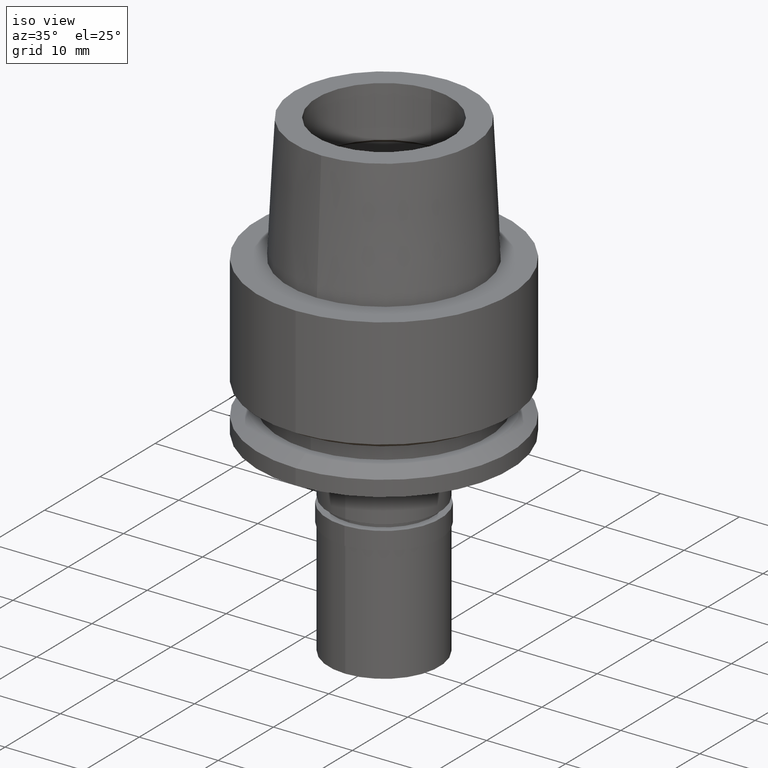
[diagram: clean part render]
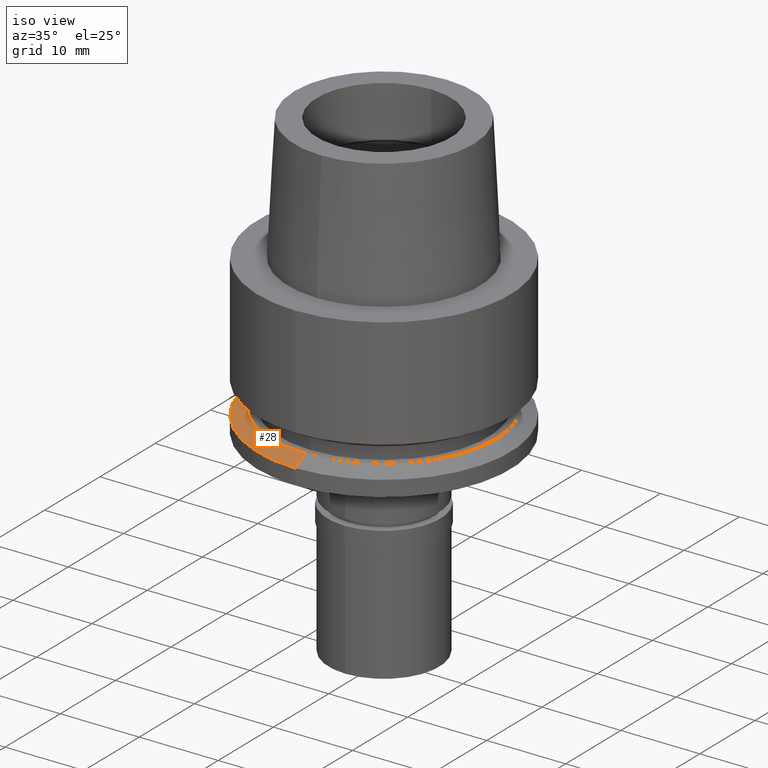
[diagram: same view with one face highlighted and labeled with its STEP entity id]
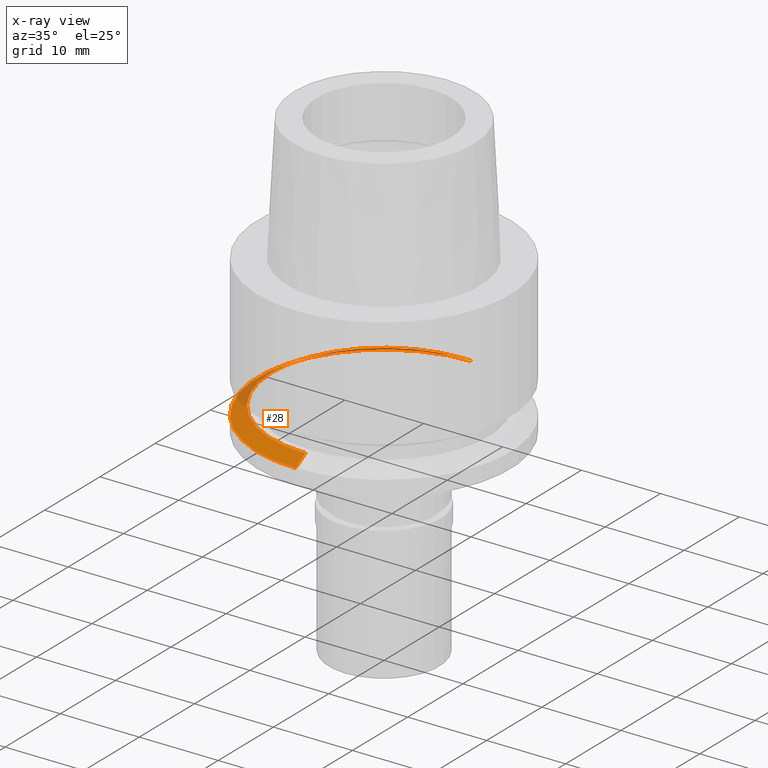
[diagram: x-ray of the same camera — body ghosted, the highlighted face saturated]
A machine part, iso view. The second image highlights one B-rep face of the part: STEP entity #28.
The next image is the same camera in x-ray: the body ghosted, the highlighted face saturated — about 24% of this face is hidden behind the body in this view.
In plain terms, the highlighted conical surface has half-angle 60 deg.
Its self-contained STEP definition (entity closure, byte-faithful):
#4 = FACE_OUTER_BOUND ( 'NONE', #1495, .T. ) ;
#28 = ADVANCED_FACE ( 'NONE', ( #4 ), #1209, .T. ) ;
#56 = ORIENTED_EDGE ( 'NONE', *, *, #1572, .F. ) ;
#155 = VERTEX_POINT ( 'NONE', #2270 ) ;
#298 = EDGE_CURVE ( 'NONE', #860, #155, #2126, .T. ) ;
#302 = DIRECTION ( 'NONE',  ( 0.0000000000000000000, 0.0000000000000000000, -1.000000000000000000 ) ) ;
#316 = DIRECTION ( 'NONE',  ( 0.0000000000000000000, -1.000000000000000000, 0.0000000000000000000 ) ) ;
#504 = VECTOR ( 'NONE', #1851, 1000.000000000000000 ) ;
#506 = CARTESIAN_POINT ( 'NONE',  ( 0.0000000000000000000, -14.23205080756999941, -17.00000000000000000 ) ) ;
#633 = VERTEX_POINT ( 'NONE', #1527 ) ;
#696 = ORIENTED_EDGE ( 'NONE', *, *, #988, .T. ) ;
#860 = VERTEX_POINT ( 'NONE', #2014 ) ;
#950 = DIRECTION ( 'NONE',  ( 0.0000000000000000000, 0.0000000000000000000, -1.000000000000000000 ) ) ;
#980 = CARTESIAN_POINT ( 'NONE',  ( 0.0000000000000000000, 0.0000000000000000000, -18.02072594216000212 ) ) ;
#988 = EDGE_CURVE ( 'NONE', #633, #155, #2536, .T. ) ;
#1010 = CARTESIAN_POINT ( 'NONE',  ( 0.0000000000000000000, -14.23205080756999941, -17.00000000000000000 ) ) ;
#1027 = AXIS2_PLACEMENT_3D ( 'NONE', #1116, #302, #316 ) ;
#1088 = DIRECTION ( 'NONE',  ( 0.0000000000000000000, 0.0000000000000000000, -1.000000000000000000 ) ) ;
#1116 = CARTESIAN_POINT ( 'NONE',  ( 0.0000000000000000000, 0.0000000000000000000, -17.00000000000000000 ) ) ;
#1178 = DIRECTION ( 'NONE',  ( 0.0000000000000000000, -1.000000000000000000, 0.0000000000000000000 ) ) ;
#1209 = CONICAL_SURFACE ( 'NONE', #1563, 15.11602540378000015, 1.047197551196400456 ) ;
#1295 = AXIS2_PLACEMENT_3D ( 'NONE', #980, #950, #1178 ) ;
#1304 = VERTEX_POINT ( 'NONE', #506 ) ;
#1454 = ORIENTED_EDGE ( 'NONE', *, *, #298, .F. ) ;
#1495 = EDGE_LOOP ( 'NONE', ( #1454, #56, #1516, #696 ) ) ;
#1516 = ORIENTED_EDGE ( 'NONE', *, *, #2421, .T. ) ;
#1527 = CARTESIAN_POINT ( 'NONE',  ( 0.0000000000000000000, 14.23205080756999941, -17.00000000000000000 ) ) ;
#1563 = AXIS2_PLACEMENT_3D ( 'NONE', #2497, #1088, #2556 ) ;
#1572 = EDGE_CURVE ( 'NONE', #1304, #860, #1843, .T. ) ;
#1605 = CIRCLE ( 'NONE', #1027, 14.23205080756999941 ) ;
#1843 = LINE ( 'NONE', #1010, #504 ) ;
#1851 = DIRECTION ( 'NONE',  ( 0.0000000000000000000, -0.8660254037847886499, -0.4999999999993937627 ) ) ;
#1893 = VECTOR ( 'NONE', #2564, 1000.000000000000000 ) ;
#2014 = CARTESIAN_POINT ( 'NONE',  ( 0.0000000000000000000, -16.00000000000000000, -18.02072594216000212 ) ) ;
#2126 = CIRCLE ( 'NONE', #1295, 16.00000000000000000 ) ;
#2270 = CARTESIAN_POINT ( 'NONE',  ( 0.0000000000000000000, 16.00000000000000000, -18.02072594216000212 ) ) ;
#2324 = CARTESIAN_POINT ( 'NONE',  ( 0.0000000000000000000, 14.23205080756999941, -17.00000000000000000 ) ) ;
#2421 = EDGE_CURVE ( 'NONE', #1304, #633, #1605, .T. ) ;
#2497 = CARTESIAN_POINT ( 'NONE',  ( 0.0000000000000000000, 0.0000000000000000000, -17.51036297107999928 ) ) ;
#2536 = LINE ( 'NONE', #2324, #1893 ) ;
#2556 = DIRECTION ( 'NONE',  ( 0.0000000000000000000, -1.000000000000000000, 0.0000000000000000000 ) ) ;
#2564 = DIRECTION ( 'NONE',  ( 0.0000000000000000000, 0.8660254037847886499, -0.4999999999993937627 ) ) ;